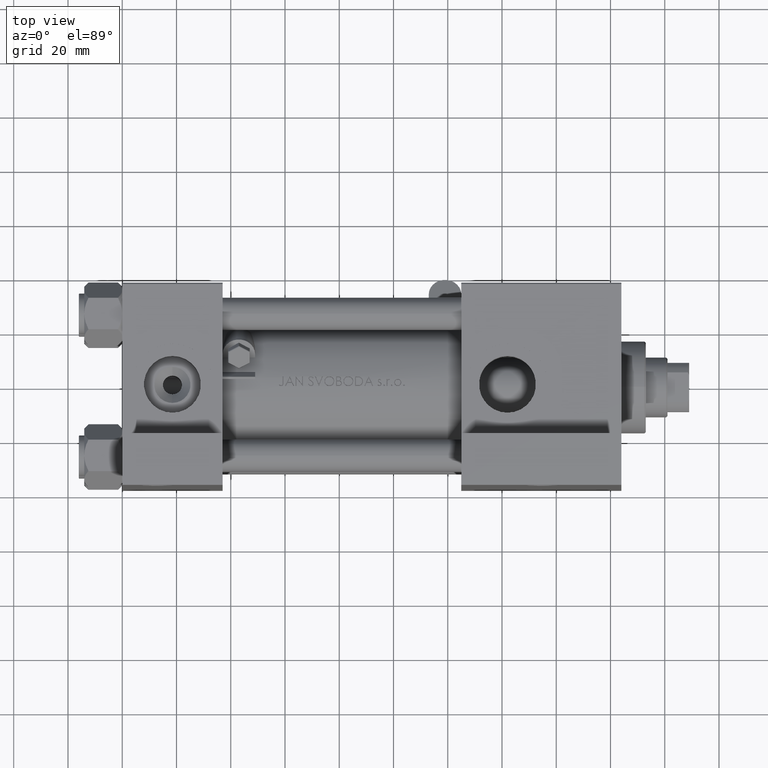
[diagram: clean part render]
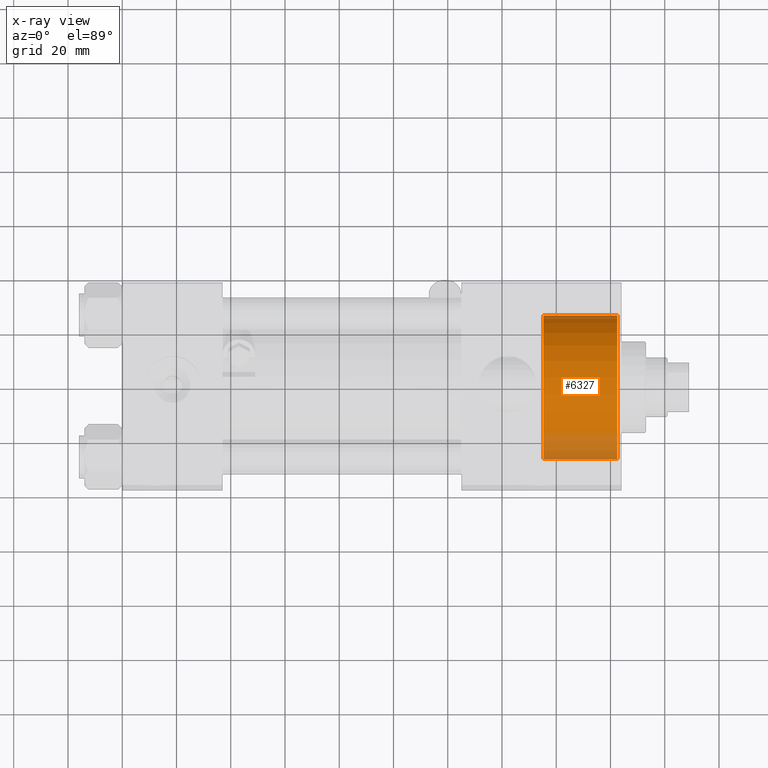
[diagram: x-ray — body ghosted, one internal face saturated and labeled with its STEP entity id]
A machine part, top view, then the same camera in x-ray: the body is ghosted and one INTERNAL B-rep face — a face not visible from any outside direction — is saturated and labeled: STEP entity #6327.
In plain terms, the highlighted cylindrical surface (partial cylindrical patch) has radius 26.5 mm, axis along (1, 0, 0).
Its self-contained STEP definition (entity closure, byte-faithful):
#1093 = VERTEX_POINT ( 'NONE', #36200 ) ;
#3049 = ORIENTED_EDGE ( 'NONE', *, *, #29007, .T. ) ;
#3132 = CARTESIAN_POINT ( 'NONE',  ( 182.5000000000000284, 0.000000000000000000, -27.00000000000000355 ) ) ;
#5111 = EDGE_CURVE ( 'NONE', #1093, #14397, #40782, .T. ) ;
#5292 = CIRCLE ( 'NONE', #32647, 26.50000000000000355 ) ;
#5523 = CARTESIAN_POINT ( 'NONE',  ( 182.5000000000000284, 0.000000000000000000, -0.5000000000000004441 ) ) ;
#6327 = ADVANCED_FACE ( 'NONE', ( #46385 ), #25401, .F. ) ;
#8229 = ORIENTED_EDGE ( 'NONE', *, *, #13018, .T. ) ;
#9336 = DIRECTION ( 'NONE',  ( 1.000000000000000000, 0.000000000000000000, 0.000000000000000000 ) ) ;
#9348 = EDGE_CURVE ( 'NONE', #22860, #1093, #10882, .T. ) ;
#10882 = CIRCLE ( 'NONE', #45383, 26.50000000000000355 ) ;
#12908 = DIRECTION ( 'NONE',  ( 1.000000000000000000, 0.000000000000000000, 0.000000000000000000 ) ) ;
#13018 = EDGE_CURVE ( 'NONE', #22860, #21455, #33987, .T. ) ;
#13902 = AXIS2_PLACEMENT_3D ( 'NONE', #40395, #24921, #21001 ) ;
#14197 = DIRECTION ( 'NONE',  ( 0.000000000000000000, 0.000000000000000000, -1.000000000000000000 ) ) ;
#14397 = VERTEX_POINT ( 'NONE', #3132 ) ;
#21001 = DIRECTION ( 'NONE',  ( 0.000000000000000000, 0.000000000000000000, -1.000000000000000000 ) ) ;
#21455 = VERTEX_POINT ( 'NONE', #39936 ) ;
#22860 = VERTEX_POINT ( 'NONE', #36484 ) ;
#24921 = DIRECTION ( 'NONE',  ( 1.000000000000000000, -0.000000000000000000, -0.000000000000000000 ) ) ;
#24922 = ORIENTED_EDGE ( 'NONE', *, *, #9348, .F. ) ;
#25401 = CYLINDRICAL_SURFACE ( 'NONE', #13902, 26.50000000000000355 ) ;
#26513 = ORIENTED_EDGE ( 'NONE', *, *, #5111, .F. ) ;
#26615 = CARTESIAN_POINT ( 'NONE',  ( 155.2999999999999829, 3.245314017740486554E-15, 26.00000000000000355 ) ) ;
#29007 = EDGE_CURVE ( 'NONE', #21455, #14397, #5292, .T. ) ;
#29720 = DIRECTION ( 'NONE',  ( 1.000000000000000000, -0.000000000000000000, -0.000000000000000000 ) ) ;
#30326 = VECTOR ( 'NONE', #29720, 1000.000000000000000 ) ;
#32153 = VECTOR ( 'NONE', #37910, 1000.000000000000000 ) ;
#32647 = AXIS2_PLACEMENT_3D ( 'NONE', #5523, #12908, #47062 ) ;
#33987 = LINE ( 'NONE', #26615, #32153 ) ;
#35674 = EDGE_LOOP ( 'NONE', ( #24922, #8229, #3049, #26513 ) ) ;
#36200 = CARTESIAN_POINT ( 'NONE',  ( 155.2999999999999829, 0.000000000000000000, -27.00000000000000355 ) ) ;
#36484 = CARTESIAN_POINT ( 'NONE',  ( 155.2999999999999829, 3.245314017740486554E-15, 26.00000000000000355 ) ) ;
#37910 = DIRECTION ( 'NONE',  ( 1.000000000000000000, -0.000000000000000000, -0.000000000000000000 ) ) ;
#39936 = CARTESIAN_POINT ( 'NONE',  ( 182.5000000000000284, 3.245314017740486554E-15, 26.00000000000000355 ) ) ;
#40395 = CARTESIAN_POINT ( 'NONE',  ( 155.2999999999999829, 0.000000000000000000, -0.5000000000000004441 ) ) ;
#40782 = LINE ( 'NONE', #44713, #30326 ) ;
#44713 = CARTESIAN_POINT ( 'NONE',  ( 155.2999999999999829, 0.000000000000000000, -27.00000000000000355 ) ) ;
#45383 = AXIS2_PLACEMENT_3D ( 'NONE', #46691, #9336, #14197 ) ;
#46385 = FACE_OUTER_BOUND ( 'NONE', #35674, .T. ) ;
#46691 = CARTESIAN_POINT ( 'NONE',  ( 155.2999999999999829, 0.000000000000000000, -0.5000000000000004441 ) ) ;
#47062 = DIRECTION ( 'NONE',  ( 0.000000000000000000, 0.000000000000000000, 1.000000000000000000 ) ) ;